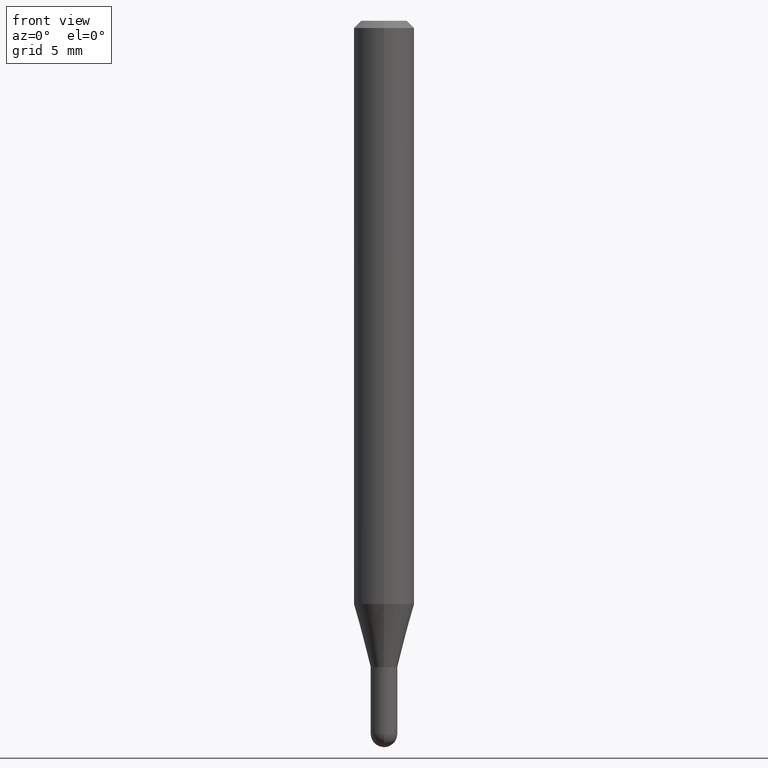
[diagram: clean part render]
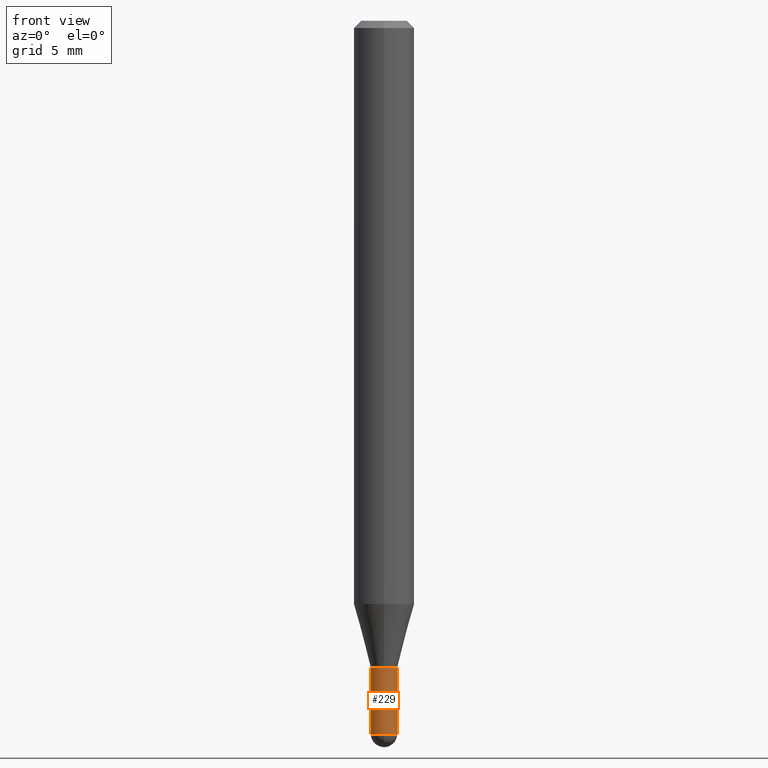
[diagram: same view with one face highlighted and labeled with its STEP entity id]
A machine part, front view. The second image highlights one B-rep face of the part: STEP entity #229.
In plain terms, the highlighted cylindrical surface (edge-blend (fillet) strip) has radius 0.6985 mm, axis along (-0, 0, 1).
Its self-contained STEP definition (entity closure, byte-faithful):
#5 = VERTEX_POINT ( 'NONE', #416 ) ;
#12 = DIRECTION ( 'NONE',  ( 1.000000000000000000, -6.982962677686277755E-15, 0.000000000000000000 ) ) ;
#18 = VERTEX_POINT ( 'NONE', #313 ) ;
#22 = CARTESIAN_POINT ( 'NONE',  ( -0.02750000000000000708, -4.705767677067038393E-15, -1.472500000000000142 ) ) ;
#30 = CARTESIAN_POINT ( 'NONE',  ( -0.02750000000000000708, 1.953992523340276014E-16, -1.352707149820099356E-30 ) ) ;
#32 = LINE ( 'NONE', #30, #136 ) ;
#40 = CARTESIAN_POINT ( 'NONE',  ( 3.264700856257157760E-29, -4.661127587355599122E-15, -1.335000000000000187 ) ) ;
#51 = CARTESIAN_POINT ( 'NONE',  ( 0.000000000000000000, 0.000000000000000000, 0.000000000000000000 ) ) ;
#54 = EDGE_LOOP ( 'NONE', ( #90, #506, #410, #348, #100 ) ) ;
#81 = FACE_OUTER_BOUND ( 'NONE', #54, .T. ) ;
#90 = ORIENTED_EDGE ( 'NONE', *, *, #316, .F. ) ;
#100 = ORIENTED_EDGE ( 'NONE', *, *, #160, .F. ) ;
#136 = VECTOR ( 'NONE', #190, 39.37007874015748143 ) ;
#152 = AXIS2_PLACEMENT_3D ( 'NONE', #40, #477, #277 ) ;
#160 = EDGE_CURVE ( 'NONE', #18, #260, #248, .T. ) ;
#177 = CARTESIAN_POINT ( 'NONE',  ( 0.02750000000000000708, -1.920314736363723691E-16, 1.340948613343882588E-30 ) ) ;
#190 = DIRECTION ( 'NONE',  ( -2.445468806185136877E-29, 3.491481338843145188E-15, 1.000000000000000000 ) ) ;
#195 = EDGE_CURVE ( 'NONE', #5, #260, #365, .T. ) ;
#211 = DIRECTION ( 'NONE',  ( -2.445468806185136597E-29, 3.491481338843145583E-15, 1.000000000000000000 ) ) ;
#214 = CARTESIAN_POINT ( 'NONE',  ( 3.600952817107613706E-29, -5.141206271446532325E-15, -1.472500000000000142 ) ) ;
#220 = CIRCLE ( 'NONE', #267, 0.02750000000000000708 ) ;
#224 = CARTESIAN_POINT ( 'NONE',  ( 3.600952817107613706E-29, -5.141206271446532325E-15, -1.472500000000000142 ) ) ;
#229 = ADVANCED_FACE ( 'NONE', ( #81 ), #250, .T. ) ;
#239 = VERTEX_POINT ( 'NONE', #437 ) ;
#244 = CARTESIAN_POINT ( 'NONE',  ( 0.02750000000000000014, -4.853159060991972403E-15, -1.335000000000000187 ) ) ;
#248 = CIRCLE ( 'NONE', #152, 0.02750000000000000014 ) ;
#249 = CIRCLE ( 'NONE', #372, 0.02750000000000000708 ) ;
#250 = CYLINDRICAL_SURFACE ( 'NONE', #351, 0.02750000000000000708 ) ;
#254 = DIRECTION ( 'NONE',  ( -2.445468806185136597E-29, 3.491481338843145583E-15, 1.000000000000000000 ) ) ;
#258 = DIRECTION ( 'NONE',  ( 1.000000000000000000, -6.982962677686277755E-15, 0.000000000000000000 ) ) ;
#260 = VERTEX_POINT ( 'NONE', #244 ) ;
#261 = VERTEX_POINT ( 'NONE', #22 ) ;
#265 = EDGE_CURVE ( 'NONE', #261, #239, #220, .T. ) ;
#267 = AXIS2_PLACEMENT_3D ( 'NONE', #224, #334, #258 ) ;
#277 = DIRECTION ( 'NONE',  ( 1.000000000000000000, -6.982962677686279332E-15, 0.000000000000000000 ) ) ;
#295 = VECTOR ( 'NONE', #468, 39.37007874015748143 ) ;
#301 = EDGE_CURVE ( 'NONE', #239, #5, #249, .T. ) ;
#313 = CARTESIAN_POINT ( 'NONE',  ( -0.02750000000000000014, -4.705767677067038393E-15, -1.335000000000000187 ) ) ;
#316 = EDGE_CURVE ( 'NONE', #261, #18, #32, .T. ) ;
#334 = DIRECTION ( 'NONE',  ( -2.445468806185136597E-29, 3.491481338843145583E-15, 1.000000000000000000 ) ) ;
#348 = ORIENTED_EDGE ( 'NONE', *, *, #195, .T. ) ;
#351 = AXIS2_PLACEMENT_3D ( 'NONE', #51, #211, #394 ) ;
#365 = LINE ( 'NONE', #177, #295 ) ;
#372 = AXIS2_PLACEMENT_3D ( 'NONE', #214, #254, #12 ) ;
#394 = DIRECTION ( 'NONE',  ( 1.000000000000000000, -6.982962677686265922E-15, 4.876176775795935232E-29 ) ) ;
#410 = ORIENTED_EDGE ( 'NONE', *, *, #301, .T. ) ;
#416 = CARTESIAN_POINT ( 'NONE',  ( 0.02750000000000000708, -5.093198403037438216E-15, -1.472500000000000142 ) ) ;
#437 = CARTESIAN_POINT ( 'NONE',  ( -1.920314736363362294E-16, -0.02750000000000512798, -1.472500000000000142 ) ) ;
#468 = DIRECTION ( 'NONE',  ( -2.445468806185136877E-29, 3.491481338843145188E-15, 1.000000000000000000 ) ) ;
#477 = DIRECTION ( 'NONE',  ( -2.445468806185136597E-29, 3.491481338843145583E-15, 1.000000000000000000 ) ) ;
#506 = ORIENTED_EDGE ( 'NONE', *, *, #265, .T. ) ;